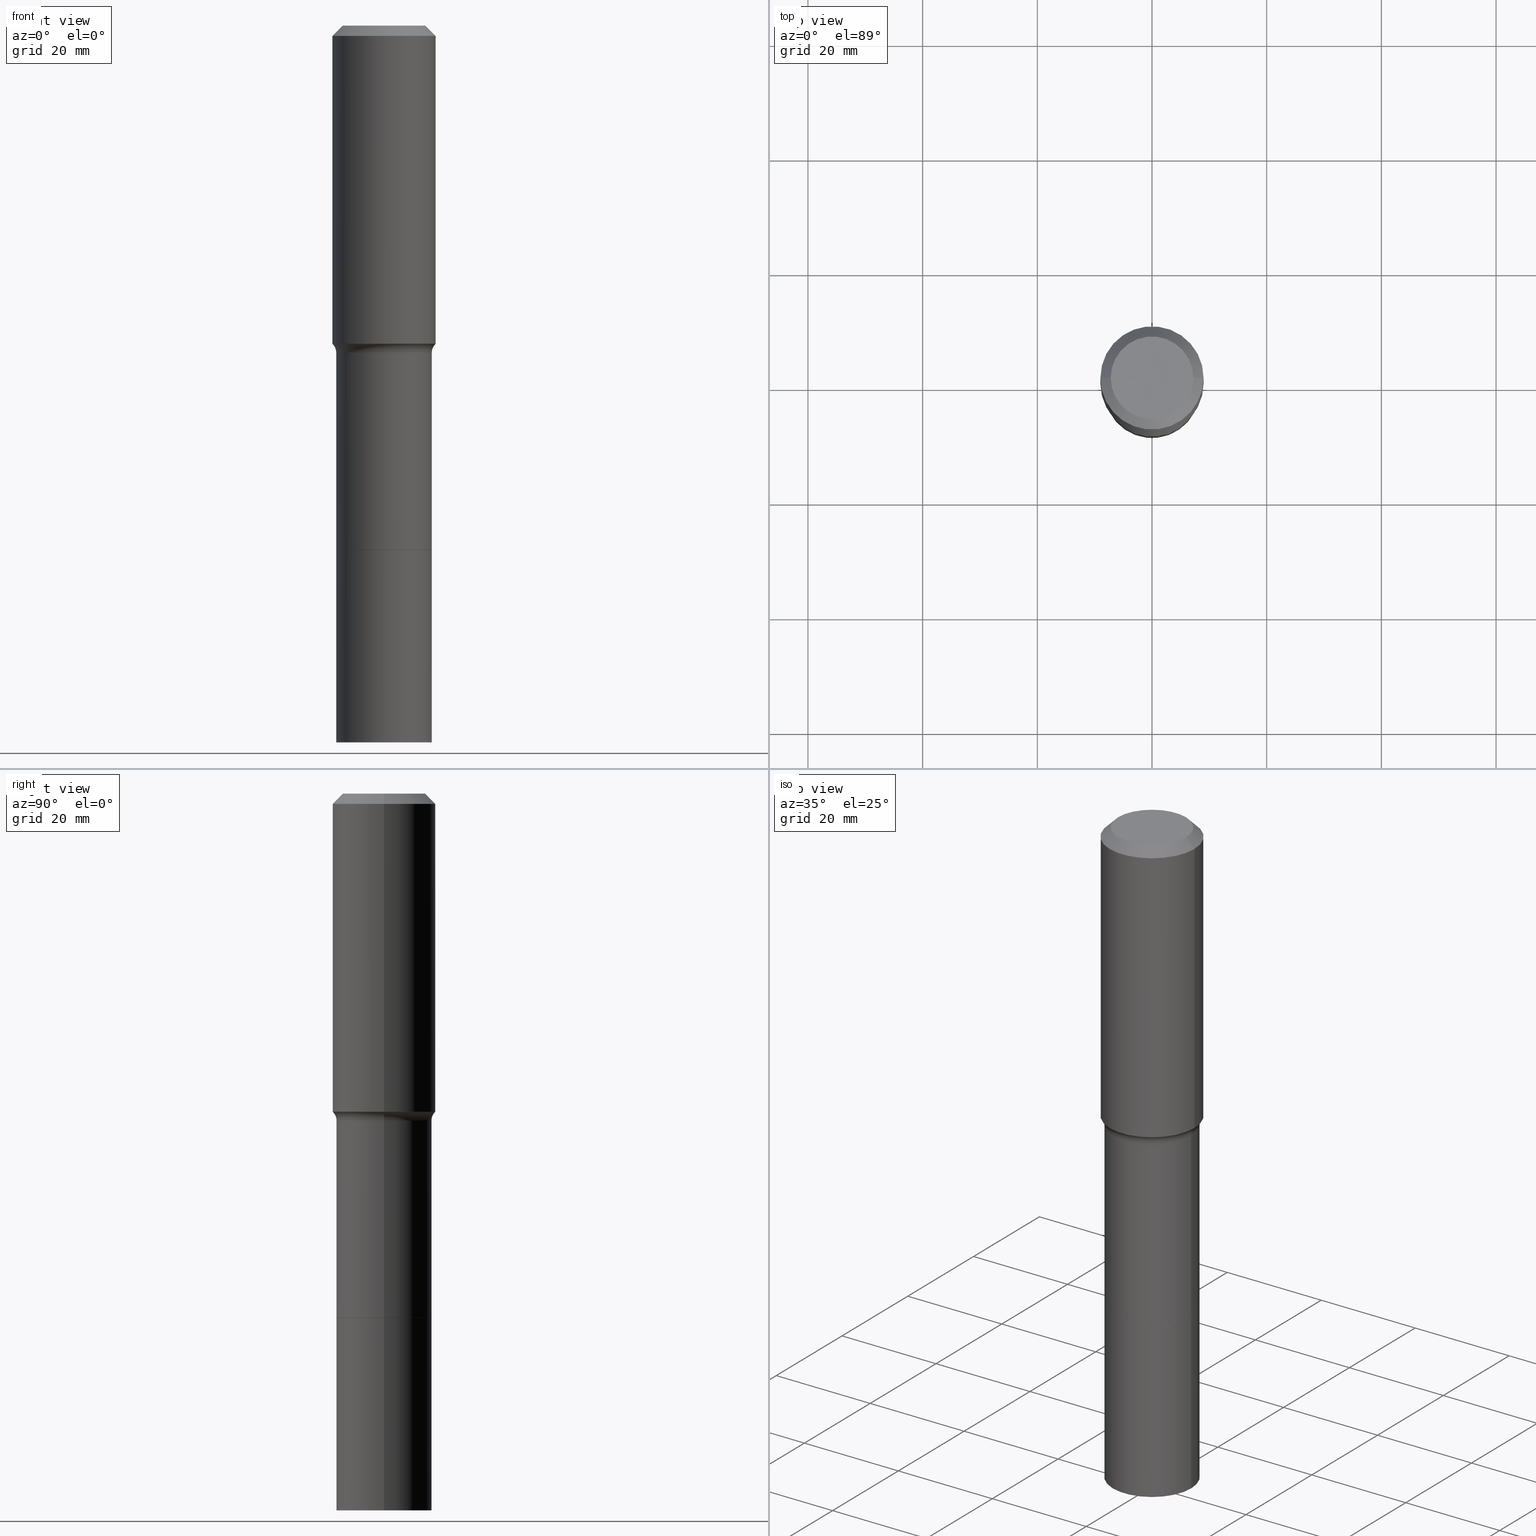
[diagram: canonical four-view strip — front | top / right | iso, engineering-drawing reading convention]
A machine part, canonical four-view strip (front | top / right | iso — engineering-drawing reading convention). The complete STEP part file that produces these views, byte-faithful:
ISO-10303-21;
HEADER;
FILE_DESCRIPTION (( 'STEP AP203' ),
    '1' );
FILE_NAME ('58543.STEP',
    '2025-04-01T15:24:35',
    ( '' ),
    ( '' ),
    'SwSTEP 2.0',
    'SolidWorks 2024',
    '' );
FILE_SCHEMA (( 'CONFIG_CONTROL_DESIGN' ));
ENDSEC;

DATA;
#1 = ADVANCED_FACE ( 'NONE', ( #60 ), #291, .T. ) ;
#2 = VERTEX_POINT ( 'NONE', #270 ) ;
#3 = DATE_AND_TIME ( #128, #19 ) ;
#4 = AXIS2_PLACEMENT_3D ( 'NONE', #454, #386, #271 ) ;
#5 = DIRECTION ( 'NONE',  ( -2.445468806185136597E-29, 3.491481338843145583E-15, 1.000000000000000000 ) ) ;
#6 = EDGE_CURVE ( 'NONE', #326, #81, #105, .T. ) ;
#7 = ORIENTED_EDGE ( 'NONE', *, *, #251, .T. ) ;
#8 = CARTESIAN_POINT ( 'NONE',  ( -0.3281000000000000028, -1.254521297251398418E-14, -3.600299999999999834 ) ) ;
#9 = LOCAL_TIME ( 11, 24, 34.00000000000000000, #288 ) ;
#10 = ORIENTED_EDGE ( 'NONE', *, *, #143, .F. ) ;
#11 = CALENDAR_DATE ( 2025, 1, 4 ) ;
#12 = EDGE_CURVE ( 'NONE', #422, #443, #468, .T. ) ;
#13 = ORIENTED_EDGE ( 'NONE', *, *, #47, .F. ) ;
#14 = CARTESIAN_POINT ( 'NONE',  ( 8.804421342908347653E-29, -1.257038026423697637E-14, -3.600299999999999834 ) ) ;
#15 = ADVANCED_FACE ( 'NONE', ( #94 ), #365, .T. ) ;
#16 = DIRECTION ( 'NONE',  ( -2.445468806185136597E-29, 3.491481338843145583E-15, 1.000000000000000000 ) ) ;
#17 = DIRECTION ( 'NONE',  ( 1.000000000000000000, -6.982962677686270655E-15, 0.000000000000000000 ) ) ;
#18 = CARTESIAN_POINT ( 'NONE',  ( 1.733103742943416361E-30, -2.474412824838151867E-16, -0.07087000000000041877 ) ) ;
#19 = LOCAL_TIME ( 11, 24, 34.00000000000000000, #368 ) ;
#20 = DIRECTION ( 'NONE',  ( 1.000000000000000000, -6.982962677686266711E-15, 0.000000000000000000 ) ) ;
#21 = CARTESIAN_POINT ( 'NONE',  ( 8.803198608505253731E-29, -1.256863452356755408E-14, -3.599799999999999667 ) ) ;
#22 = ORIENTED_EDGE ( 'NONE', *, *, #358, .T. ) ;
#23 = CARTESIAN_POINT ( 'NONE',  ( -0.3280999999999998917, 2.331290716028887941E-15, -1.613902603112634153E-29 ) ) ;
#24 = CARTESIAN_POINT ( 'NONE',  ( 5.488365641721302321E-29, -7.835931568765670941E-15, -2.244299999999999962 ) ) ;
#25 = ORIENTED_EDGE ( 'NONE', *, *, #301, .T. ) ;
#26 = CARTESIAN_POINT ( 'NONE',  ( 0.3276000000000000023, -1.485799883744699984E-14, -3.600300000000000278 ) ) ;
#27 = ORIENTED_EDGE ( 'NONE', *, *, #397, .F. ) ;
#28 = DIRECTION ( 'NONE',  ( 1.000000000000000000, -6.982962677686264344E-15, 0.000000000000000000 ) ) ;
#29 = ADVANCED_FACE ( 'NONE', ( #425 ), #231, .T. ) ;
#30 = FACE_OUTER_BOUND ( 'NONE', #337, .T. ) ;
#31 = APPROVAL ( #473, 'UNSPECIFIED' ) ;
#32 = AXIS2_PLACEMENT_3D ( 'NONE', #264, #5, #175 ) ;
#33 = AXIS2_PLACEMENT_3D ( 'NONE', #348, #137, #235 ) ;
#34 =( GEOMETRIC_REPRESENTATION_CONTEXT ( 3 ) GLOBAL_UNCERTAINTY_ASSIGNED_CONTEXT ( ( #183 ) ) GLOBAL_UNIT_ASSIGNED_CONTEXT ( ( #240, #282, #72 ) ) REPRESENTATION_CONTEXT ( 'NONE', 'WORKASPACE' ) );
#35 = ADVANCED_FACE ( 'NONE', ( #262 ), #499, .T. ) ;
#36 = APPROVAL_ROLE ( '' ) ;
#37 = DIRECTION ( 'NONE',  ( 1.000000000000000000, -6.982962677686268288E-15, 0.000000000000000000 ) ) ;
#38 = MANIFOLD_SOLID_BREP ( 'Body-Move/Copy2[1]', #393 ) ;
#39 = LINE ( 'NONE', #202, #241 ) ;
#40 = AXIS2_PLACEMENT_3D ( 'NONE', #273, #219, #102 ) ;
#41 = ORIENTED_EDGE ( 'NONE', *, *, #12, .F. ) ;
#42 = PERSON_AND_ORGANIZATION_ROLE ( 'creator' ) ;
#43 = EDGE_CURVE ( 'NONE', #2, #326, #80, .T. ) ;
#44 = VERTEX_POINT ( 'NONE', #501 ) ;
#45 = APPROVAL_STATUS ( 'not_yet_approved' ) ;
#46 = CARTESIAN_POINT ( 'NONE',  ( 1.733103742943416361E-30, -2.474412824838151867E-16, -0.07087000000000041877 ) ) ;
#47 = EDGE_CURVE ( 'NONE', #443, #466, #390, .T. ) ;
#48 = APPROVAL_ROLE ( '' ) ;
#49 = ORIENTED_EDGE ( 'NONE', *, *, #358, .F. ) ;
#50 = AXIS2_PLACEMENT_3D ( 'NONE', #129, #327, #478 ) ;
#51 = EDGE_LOOP ( 'NONE', ( #120, #492 ) ) ;
#52 = EDGE_CURVE ( 'NONE', #422, #452, #477, .T. ) ;
#53 = DIRECTION ( 'NONE',  ( -2.445468806185136597E-29, 3.491481338843145583E-15, 1.000000000000000000 ) ) ;
#54 = AXIS2_PLACEMENT_3D ( 'NONE', #353, #311, #423 ) ;
#55 = EDGE_LOOP ( 'NONE', ( #22, #376, #335, #518 ) ) ;
#56 = CC_DESIGN_PERSON_AND_ORGANIZATION_ASSIGNMENT ( #170, #42, ( #132 ) ) ;
#57 = DIRECTION ( 'NONE',  ( -1.000000000000000000, 6.982962677686265922E-15, -4.876176775795935793E-29 ) ) ;
#58 = FACE_OUTER_BOUND ( 'NONE', #330, .T. ) ;
#59 = CARTESIAN_POINT ( 'NONE',  ( -0.3543500000000001648, 2.517808184165916180E-15, -1.743024649231826627E-29 ) ) ;
#60 = FACE_OUTER_BOUND ( 'NONE', #172, .T. ) ;
#61 = CARTESIAN_POINT ( 'NONE',  ( 0.2834800000000000098, -2.311636360201216027E-15, 3.860086710927458874E-18 ) ) ;
#62 = CARTESIAN_POINT ( 'NONE',  ( 1.733103742943416361E-30, -2.474412824838151867E-16, -0.07087000000000041877 ) ) ;
#63 = DIRECTION ( 'NONE',  ( -0.7071067811860163310, 7.493145998868434073E-15, 0.7071067811870787034 ) ) ;
#64 = DIRECTION ( 'NONE',  ( 1.000000000000000000, -6.982962677686266711E-15, 0.000000000000000000 ) ) ;
#65 = ORIENTED_EDGE ( 'NONE', *, *, #193, .F. ) ;
#66 = DIRECTION ( 'NONE',  ( 1.000000000000000000, -6.982962677686264344E-15, 0.000000000000000000 ) ) ;
#67 = FACE_OUTER_BOUND ( 'NONE', #166, .T. ) ;
#68 = DIRECTION ( 'NONE',  ( 1.000000000000000000, -6.982962677686266711E-15, 4.876249319814053138E-29 ) ) ;
#69 = CARTESIAN_POINT ( 'NONE',  ( -0.3495917038704661750, -5.161438348311724867E-15, -2.189740131195000217 ) ) ;
#70 = ORIENTED_EDGE ( 'NONE', *, *, #167, .T. ) ;
#71 = EDGE_CURVE ( 'NONE', #2, #84, #281, .T. ) ;
#72 =( NAMED_UNIT ( * ) SI_UNIT ( $, .STERADIAN. ) SOLID_ANGLE_UNIT ( ) );
#73 = CIRCLE ( 'NONE', #451, 0.3543499999999999983 ) ;
#74 = CARTESIAN_POINT ( 'NONE',  ( -0.3543500000000002759, -5.109812820957476357E-15, -2.184637483312656059 ) ) ;
#75 = ADVANCED_FACE ( 'NONE', ( #110 ), #210, .T. ) ;
#76 = VECTOR ( 'NONE', #299, 39.37007874015748143 ) ;
#77 = DIRECTION ( 'NONE',  ( 1.000000000000000000, -6.982962677686266711E-15, 0.000000000000000000 ) ) ;
#78 = EDGE_CURVE ( 'NONE', #2, #412, #430, .T. ) ;
#79 = DIRECTION ( 'NONE',  ( -2.445468806185136877E-29, 3.491481338843145188E-15, 1.000000000000000000 ) ) ;
#80 = CIRCLE ( 'NONE', #379, 0.3495917038704661750 ) ;
#81 = VERTEX_POINT ( 'NONE', #74 ) ;
#82 = CC_DESIGN_PERSON_AND_ORGANIZATION_ASSIGNMENT ( #205, #334, ( #132 ) ) ;
#83 = AXIS2_PLACEMENT_3D ( 'NONE', #450, #460, #136 ) ;
#84 = VERTEX_POINT ( 'NONE', #113 ) ;
#85 = DIRECTION ( 'NONE',  ( 1.000000000000000000, -6.982962677686264344E-15, 0.000000000000000000 ) ) ;
#86 = ORIENTED_EDGE ( 'NONE', *, *, #321, .F. ) ;
#87 = CARTESIAN_POINT ( 'NONE',  ( 8.804421342908348775E-29, -1.257038026423697795E-14, -3.600300000000000278 ) ) ;
#88 = ADVANCED_FACE ( 'NONE', ( #30 ), #516, .T. ) ;
#89 = ORIENTED_EDGE ( 'NONE', *, *, #237, .F. ) ;
#90 = CARTESIAN_POINT ( 'NONE',  ( 4.611458204391559748E-29, -1.857494212723419535E-14, -3.600300000000000278 ) ) ;
#91 = AXIS2_PLACEMENT_3D ( 'NONE', #374, #464, #309 ) ;
#92 = ORIENTED_EDGE ( 'NONE', *, *, #397, .T. ) ;
#93 = DIRECTION ( 'NONE',  ( 7.105427357601001859E-15, 1.000000000000000000, -3.491481338843145583E-15 ) ) ;
#94 = FACE_OUTER_BOUND ( 'NONE', #509, .T. ) ;
#95 = DIRECTION ( 'NONE',  ( -2.445468806185136597E-29, 3.491481338843145583E-15, 1.000000000000000000 ) ) ;
#96 = DIRECTION ( 'NONE',  ( -2.445468806185136597E-29, 3.491481338843145583E-15, 1.000000000000000000 ) ) ;
#97 = DIRECTION ( 'NONE',  ( -2.445468806185136597E-29, 3.491481338843145583E-15, 1.000000000000000000 ) ) ;
#98 = AXIS2_PLACEMENT_3D ( 'NONE', #149, #360, #28 ) ;
#99 = CARTESIAN_POINT ( 'NONE',  ( -0.3280999999999998362, -7.870992330137724174E-15, -2.244299999999999962 ) ) ;
#100 = APPROVAL ( #45, 'UNSPECIFIED' ) ;
#101 = APPROVAL_PERSON_ORGANIZATION ( #433, #31, #36 ) ;
#102 = DIRECTION ( 'NONE',  ( 1.000000000000000000, -6.982962677686264344E-15, 0.000000000000000000 ) ) ;
#103 = CARTESIAN_POINT ( 'NONE',  ( -0.3276000000000000023, -1.023999303471277694E-14, -3.600300000000000278 ) ) ;
#104 = ADVANCED_FACE ( 'NONE', ( #362 ), #238, .F. ) ;
#105 = LINE ( 'NONE', #459, #389 ) ;
#106 = LINE ( 'NONE', #274, #394 ) ;
#107 = DIRECTION ( 'NONE',  ( -2.445468806185136597E-29, 3.491481338843145583E-15, 1.000000000000000000 ) ) ;
#108 = DIRECTION ( 'NONE',  ( -1.000000000000000000, 6.982962677686265922E-15, -4.876176775795935793E-29 ) ) ;
#109 = APPLICATION_PROTOCOL_DEFINITION ( 'international standard', 'config_control_design', 1994, #435 ) ;
#110 = FACE_OUTER_BOUND ( 'NONE', #293, .T. ) ;
#111 = AXIS2_PLACEMENT_3D ( 'NONE', #90, #226, #411 ) ;
#112 = LINE ( 'NONE', #279, #399 ) ;
#113 = CARTESIAN_POINT ( 'NONE',  ( 0.3543500000000002759, -1.010203382996152320E-14, -2.184637483312656059 ) ) ;
#114 = DIRECTION ( 'NONE',  ( 2.438088387897960049E-29, -3.491481338843145188E-15, -1.000000000000000000 ) ) ;
#115 = EDGE_CURVE ( 'NONE', #81, #84, #122, .T. ) ;
#116 = VECTOR ( 'NONE', #487, 39.37007874015748143 ) ;
#117 = CARTESIAN_POINT ( 'NONE',  ( -0.3543499999999999983, 2.226971542354313655E-15, -0.07087000000000041877 ) ) ;
#118 = AXIS2_PLACEMENT_3D ( 'NONE', #127, #267, #57 ) ;
#119 = EDGE_CURVE ( 'NONE', #372, #177, #112, .T. ) ;
#120 = ORIENTED_EDGE ( 'NONE', *, *, #514, .F. ) ;
#121 = PERSON_AND_ORGANIZATION_ROLE ( 'classification_officer' ) ;
#122 = CIRCLE ( 'NONE', #50, 0.3543500000000002759 ) ;
#123 = ORIENTED_EDGE ( 'NONE', *, *, #243, .F. ) ;
#124 = PERSON_AND_ORGANIZATION ( #296, #336 ) ;
#125 = EDGE_LOOP ( 'NONE', ( #13, #41, #169, #204 ) ) ;
#126 = ORIENTED_EDGE ( 'NONE', *, *, #180, .F. ) ;
#127 = CARTESIAN_POINT ( 'NONE',  ( -4.719860820353095981E-47, 6.738710358733626979E-33, 1.930043355456227555E-18 ) ) ;
#128 = CALENDAR_DATE ( 2025, 1, 4 ) ;
#129 = CARTESIAN_POINT ( 'NONE',  ( 5.342462818263902286E-29, -7.627621005123393326E-15, -2.184637483312656059 ) ) ;
#130 = ORIENTED_EDGE ( 'NONE', *, *, #143, .T. ) ;
#131 = CARTESIAN_POINT ( 'NONE',  ( 0.000000000000000000, 0.000000000000000000, 0.000000000000000000 ) ) ;
#132 = PRODUCT_DEFINITION_FORMATION_WITH_SPECIFIED_SOURCE ( 'ANY', '', #490, .NOT_KNOWN. ) ;
#133 = FACE_OUTER_BOUND ( 'NONE', #332, .T. ) ;
#134 = VERTEX_POINT ( 'NONE', #406 ) ;
#135 = ADVANCED_FACE ( 'NONE', ( #375 ), #176, .T. ) ;
#136 = DIRECTION ( 'NONE',  ( -1.000000000000000000, 6.982962677686266711E-15, 0.000000000000000000 ) ) ;
#137 = DIRECTION ( 'NONE',  ( -2.445468806185136597E-29, 3.491481338843145583E-15, 1.000000000000000000 ) ) ;
#138 = ORIENTED_EDGE ( 'NONE', *, *, #486, .T. ) ;
#139 = CARTESIAN_POINT ( 'NONE',  ( 0.3543500000000001648, -2.474412824838129483E-15, 1.727873240503290590E-29 ) ) ;
#140 = ORIENTED_EDGE ( 'NONE', *, *, #380, .T. ) ;
#141 = VECTOR ( 'NONE', #431, 39.37007874015748143 ) ;
#142 = PLANE ( 'NONE',  #111 ) ;
#143 = EDGE_CURVE ( 'NONE', #81, #452, #171, .T. ) ;
#144 = AXIS2_PLACEMENT_3D ( 'NONE', #21, #182, #357 ) ;
#145 = DIRECTION ( 'NONE',  ( -2.445468806185136597E-29, 3.491481338843145583E-15, 1.000000000000000000 ) ) ;
#146 = CC_DESIGN_DATE_AND_TIME_ASSIGNMENT ( #403, #494, ( #432 ) ) ;
#147 = DIRECTION ( 'NONE',  ( -0.6819983600625011411, 7.399397606724297620E-15, 0.7313537016191680173 ) ) ;
#148 = CARTESIAN_POINT ( 'NONE',  ( 0.000000000000000000, 0.000000000000000000, 0.000000000000000000 ) ) ;
#149 = CARTESIAN_POINT ( 'NONE',  ( 8.804421342908348775E-29, -1.257038026423697795E-14, -3.600300000000000278 ) ) ;
#150 = SHAPE_DEFINITION_REPRESENTATION ( #328, #504 ) ;
#151 = AXIS2_PLACEMENT_3D ( 'NONE', #417, #253, #414 ) ;
#152 = AXIS2_PLACEMENT_3D ( 'NONE', #383, #93, #347 ) ;
#153 = ADVANCED_FACE ( 'NONE', ( #218 ), #483, .T. ) ;
#154 = CALENDAR_DATE ( 2025, 1, 4 ) ;
#155 = CARTESIAN_POINT ( 'NONE',  ( 5.354941184489120868E-29, -7.645436804983283670E-15, -2.189740131195000217 ) ) ;
#156 = AXIS2_PLACEMENT_3D ( 'NONE', #415, #97, #20 ) ;
#157 = ADVANCED_FACE ( 'NONE', ( #133 ), #355, .F. ) ;
#158 = PERSON_AND_ORGANIZATION ( #296, #336 ) ;
#159 = CARTESIAN_POINT ( 'NONE',  ( 0.000000000000000000, 0.000000000000000000, 0.000000000000000000 ) ) ;
#160 = ORIENTED_EDGE ( 'NONE', *, *, #514, .T. ) ;
#161 = CIRCLE ( 'NONE', #346, 0.3276000000000000023 ) ;
#162 = EDGE_LOOP ( 'NONE', ( #266, #190 ) ) ;
#163 = ORIENTED_EDGE ( 'NONE', *, *, #208, .F. ) ;
#164 = CLOSED_SHELL ( 'NONE', ( #1, #135, #35, #75, #329, #315, #260, #157, #15, #88, #269, #474, #290, #153 ) ) ;
#165 = CIRCLE ( 'NONE', #461, 0.3543499999999999983 ) ;
#166 = EDGE_LOOP ( 'NONE', ( #480, #25, #7, #305 ) ) ;
#167 = EDGE_CURVE ( 'NONE', #254, #384, #343, .T. ) ;
#168 = AXIS2_PLACEMENT_3D ( 'NONE', #502, #96, #17 ) ;
#169 = ORIENTED_EDGE ( 'NONE', *, *, #52, .T. ) ;
#170 = PERSON_AND_ORGANIZATION ( #296, #336 ) ;
#171 = LINE ( 'NONE', #59, #116 ) ;
#172 = EDGE_LOOP ( 'NONE', ( #352, #70, #49, #89 ) ) ;
#173 = CARTESIAN_POINT ( 'NONE',  ( -0.3543499999999999983, -1.419722959637687608E-15, -0.07087000000000041877 ) ) ;
#174 = CYLINDRICAL_SURFACE ( 'NONE', #197, 0.3281000000000001138 ) ;
#175 = DIRECTION ( 'NONE',  ( 1.000000000000000000, -6.982962677686265922E-15, 4.883557194083112901E-29 ) ) ;
#176 = CONICAL_SURFACE ( 'NONE', #515, 0.3543499999999999983, 0.7853981633974453924 ) ;
#177 = VERTEX_POINT ( 'NONE', #8 ) ;
#178 = DIRECTION ( 'NONE',  ( 1.000000000000000000, -6.982962677686265922E-15, 4.883557194083112901E-29 ) ) ;
#179 = DIRECTION ( 'NONE',  ( -2.445468806185136597E-29, 3.491481338843145583E-15, 1.000000000000000000 ) ) ;
#180 = EDGE_CURVE ( 'NONE', #443, #422, #188, .T. ) ;
#181 = ORIENTED_EDGE ( 'NONE', *, *, #71, .T. ) ;
#182 = DIRECTION ( 'NONE',  ( -2.445468806185136597E-29, 3.491481338843145583E-15, 1.000000000000000000 ) ) ;
#183 = UNCERTAINTY_MEASURE_WITH_UNIT (LENGTH_MEASURE( 1.000000000000000082E-05 ), #240, 'distance_accuracy_value', 'NONE');
#184 = EDGE_LOOP ( 'NONE', ( #92, #130, #310, #187 ) ) ;
#185 = DIRECTION ( 'NONE',  ( 1.000000000000000000, -6.982962677686266711E-15, 0.000000000000000000 ) ) ;
#186 = DIRECTION ( 'NONE',  ( 1.000000000000000000, -6.982962677686268288E-15, 0.000000000000000000 ) ) ;
#187 = ORIENTED_EDGE ( 'NONE', *, *, #380, .F. ) ;
#188 = CIRCLE ( 'NONE', #151, 0.2834800000000000098 ) ;
#189 = CYLINDRICAL_SURFACE ( 'NONE', #401, 0.3280999999999998917 ) ;
#190 = ORIENTED_EDGE ( 'NONE', *, *, #180, .T. ) ;
#191 = DIRECTION ( 'NONE',  ( -2.445468806185136597E-29, 3.491481338843145583E-15, 1.000000000000000000 ) ) ;
#192 = DIRECTION ( 'NONE',  ( 1.000000000000000000, 0.000000000000000000, 0.000000000000000000 ) ) ;
#193 = EDGE_CURVE ( 'NONE', #297, #412, #475, .T. ) ;
#194 = DIRECTION ( 'NONE',  ( 1.000000000000000000, -6.982962677686265922E-15, 4.876176775795935793E-29 ) ) ;
#195 = CIRCLE ( 'NONE', #484, 0.3280999999999998362 ) ;
#196 = CARTESIAN_POINT ( 'NONE',  ( 0.3495917038704661750, -1.008662262553949973E-14, -2.189740131195000217 ) ) ;
#197 = AXIS2_PLACEMENT_3D ( 'NONE', #230, #304, #424 ) ;
#198 = EDGE_CURVE ( 'NONE', #177, #248, #512, .T. ) ;
#199 = COORDINATED_UNIVERSAL_TIME_OFFSET ( 5, 0, .BEHIND. ) ;
#200 = AXIS2_PLACEMENT_3D ( 'NONE', #434, #320, #37 ) ;
#201 = CC_DESIGN_DATE_AND_TIME_ASSIGNMENT ( #482, #439, ( #212 ) ) ;
#202 = CARTESIAN_POINT ( 'NONE',  ( 0.3281000000000001138, -1.486149031878584127E-14, -3.600299999999999834 ) ) ;
#203 = MANIFOLD_SOLID_BREP ( 'Body-Move/Copy2[2]', #164 ) ;
#204 = ORIENTED_EDGE ( 'NONE', *, *, #243, .T. ) ;
#205 = PERSON_AND_ORGANIZATION ( #296, #336 ) ;
#206 = ORIENTED_EDGE ( 'NONE', *, *, #257, .T. ) ;
#207 = APPROVAL_ROLE ( '' ) ;
#208 = EDGE_CURVE ( 'NONE', #410, #254, #333, .T. ) ;
#209 = ORIENTED_EDGE ( 'NONE', *, *, #193, .T. ) ;
#210 = CONICAL_SURFACE ( 'NONE', #426, 0.3495917038704661750, 0.7504915783575653032 ) ;
#211 = DIRECTION ( 'NONE',  ( 1.000000000000000000, -6.982962677686264344E-15, 0.000000000000000000 ) ) ;
#212 = PRODUCT_DEFINITION ( 'UNKNOWN', '', #132, #272 ) ;
#213 = ORIENTED_EDGE ( 'NONE', *, *, #216, .T. ) ;
#214 = AXIS2_PLACEMENT_3D ( 'NONE', #14, #306, #186 ) ;
#215 = ORIENTED_EDGE ( 'NONE', *, *, #505, .T. ) ;
#216 = EDGE_CURVE ( 'NONE', #412, #297, #195, .T. ) ;
#217 = DIRECTION ( 'NONE',  ( -2.445468806185136597E-29, 3.491481338843145583E-15, 1.000000000000000000 ) ) ;
#218 = FACE_OUTER_BOUND ( 'NONE', #485, .T. ) ;
#219 = DIRECTION ( 'NONE',  ( -2.445468806185136597E-29, 3.491481338843145583E-15, 1.000000000000000000 ) ) ;
#220 = DIRECTION ( 'NONE',  ( -2.445468806185136597E-29, 3.491481338843145583E-15, 1.000000000000000000 ) ) ;
#221 = PRODUCT_RELATED_PRODUCT_CATEGORY ( 'detail', '', ( #490 ) ) ;
#222 = CARTESIAN_POINT ( 'NONE',  ( 5.488365641721302321E-29, -7.835931568765670941E-15, -2.244299999999999962 ) ) ;
#223 = VECTOR ( 'NONE', #318, 39.37007874015748143 ) ;
#224 = ORIENTED_EDGE ( 'NONE', *, *, #167, .F. ) ;
#225 = PLANE ( 'NONE',  #118 ) ;
#226 = DIRECTION ( 'NONE',  ( -2.438088387897960049E-29, 3.491481338843145188E-15, 1.000000000000000000 ) ) ;
#227 = AXIS2_PLACEMENT_3D ( 'NONE', #377, #95, #185 ) ;
#228 = CARTESIAN_POINT ( 'NONE',  ( 1.203488563587891146E-28, -1.718262711284877024E-14, -4.921299999999999564 ) ) ;
#229 = CARTESIAN_POINT ( 'NONE',  ( 8.804421342908347653E-29, -1.257038026423697637E-14, -3.600299999999999834 ) ) ;
#230 = CARTESIAN_POINT ( 'NONE',  ( 8.804421342908347653E-29, -1.257038026423697637E-14, -3.600299999999999834 ) ) ;
#231 = PLANE ( 'NONE',  #246 ) ;
#232 = FACE_OUTER_BOUND ( 'NONE', #55, .T. ) ;
#233 = DIRECTION ( 'NONE',  ( -2.445468806185136597E-29, 3.491481338843145583E-15, 1.000000000000000000 ) ) ;
#234 = AXIS2_PLACEMENT_3D ( 'NONE', #159, #275, #194 ) ;
#235 = DIRECTION ( 'NONE',  ( 1.000000000000000000, -6.982962677686270655E-15, 0.000000000000000000 ) ) ;
#236 = CIRCLE ( 'NONE', #54, 0.3281000000000002248 ) ;
#237 = EDGE_CURVE ( 'NONE', #410, #44, #106, .T. ) ;
#238 = PLANE ( 'NONE',  #276 ) ;
#239 = AXIS2_PLACEMENT_3D ( 'NONE', #349, #145, #314 ) ;
#240 =( CONVERSION_BASED_UNIT ( 'INCH', #280 ) LENGTH_UNIT ( ) NAMED_UNIT ( #287 ) );
#241 = VECTOR ( 'NONE', #79, 39.37007874015748143 ) ;
#242 = MECHANICAL_CONTEXT ( 'NONE', #435, 'mechanical' ) ;
#243 = EDGE_CURVE ( 'NONE', #452, #466, #165, .T. ) ;
#244 = APPROVAL_PERSON_ORGANIZATION ( #292, #245, #48 ) ;
#245 = APPROVAL ( #404, 'UNSPECIFIED' ) ;
#246 = AXIS2_PLACEMENT_3D ( 'NONE', #228, #356, #108 ) ;
#247 = DATE_AND_TIME ( #479, #470 ) ;
#248 = VERTEX_POINT ( 'NONE', #398 ) ;
#249 = APPROVAL_PERSON_ORGANIZATION ( #294, #100, #207 ) ;
#250 = DATE_AND_TIME ( #11, #9 ) ;
#251 = EDGE_CURVE ( 'NONE', #134, #248, #39, .T. ) ;
#252 = ORIENTED_EDGE ( 'NONE', *, *, #505, .F. ) ;
#253 = DIRECTION ( 'NONE',  ( -2.445468806185136597E-29, 3.491481338843145583E-15, 1.000000000000000000 ) ) ;
#254 = VERTEX_POINT ( 'NONE', #103 ) ;
#255 = AXIS2_PLACEMENT_3D ( 'NONE', #87, #295, #85 ) ;
#256 = ORIENTED_EDGE ( 'NONE', *, *, #115, .F. ) ;
#257 = EDGE_CURVE ( 'NONE', #44, #412, #388, .T. ) ;
#258 = DIRECTION ( 'NONE',  ( -2.445468806185136877E-29, 3.491481338843145188E-15, 1.000000000000000000 ) ) ;
#259 = ORIENTED_EDGE ( 'NONE', *, *, #47, .T. ) ;
#260 = ADVANCED_FACE ( 'NONE', ( #378 ), #508, .T. ) ;
#261 = DIRECTION ( 'NONE',  ( -2.445468806185136597E-29, 3.491481338843145583E-15, 1.000000000000000000 ) ) ;
#262 = FACE_OUTER_BOUND ( 'NONE', #184, .T. ) ;
#263 = CARTESIAN_POINT ( 'NONE',  ( 0.3280999999999998917, -2.291110054548863720E-15, 1.599873600138646028E-29 ) ) ;
#264 = CARTESIAN_POINT ( 'NONE',  ( 5.488365641721302321E-29, -7.835931568765670941E-15, -2.244299999999999962 ) ) ;
#265 = VECTOR ( 'NONE', #258, 39.37007874015748143 ) ;
#266 = ORIENTED_EDGE ( 'NONE', *, *, #12, .T. ) ;
#267 = DIRECTION ( 'NONE',  ( 2.438088387897960049E-29, -3.491481338843145188E-15, -1.000000000000000000 ) ) ;
#268 = DIRECTION ( 'NONE',  ( 1.000000000000000000, -6.982962677686267499E-15, 4.876176775795935793E-29 ) ) ;
#269 = ADVANCED_FACE ( 'NONE', ( #416 ), #428, .T. ) ;
#270 = CARTESIAN_POINT ( 'NONE',  ( 0.3495917038704661750, -1.008662262553949657E-14, -2.189740131195000217 ) ) ;
#271 = DIRECTION ( 'NONE',  ( 1.000000000000000000, -6.982962677686267499E-15, 4.876176775795935793E-29 ) ) ;
#272 = DESIGN_CONTEXT ( 'detailed design', #323, 'design' ) ;
#273 = CARTESIAN_POINT ( 'NONE',  ( 8.804421342908348775E-29, -1.257038026423697795E-14, -3.600300000000000278 ) ) ;
#274 = CARTESIAN_POINT ( 'NONE',  ( 0.3276000000000000023, -1.485799883744699984E-14, -3.600300000000000278 ) ) ;
#275 = DIRECTION ( 'NONE',  ( -2.445468806185136597E-29, 3.491481338843145583E-15, 1.000000000000000000 ) ) ;
#276 = AXIS2_PLACEMENT_3D ( 'NONE', #471, #114, #340 ) ;
#277 = EDGE_CURVE ( 'NONE', #326, #297, #420, .T. ) ;
#278 = VECTOR ( 'NONE', #312, 39.37007874015748143 ) ;
#279 = CARTESIAN_POINT ( 'NONE',  ( -0.3281000000000001138, -1.023908954820808567E-14, -3.600299999999999834 ) ) ;
#280 = LENGTH_MEASURE_WITH_UNIT ( LENGTH_MEASURE( 0.02539999999999999897 ), #467 );
#281 = LINE ( 'NONE', #196, #141 ) ;
#282 =( NAMED_UNIT ( * ) PLANE_ANGLE_UNIT ( ) SI_UNIT ( $, .RADIAN. ) );
#283 = APPLICATION_PROTOCOL_DEFINITION ( 'international standard', 'config_control_design', 1994, #323 ) ;
#284 = DIRECTION ( 'NONE',  ( 1.000000000000000000, -6.982962677686266711E-15, 0.000000000000000000 ) ) ;
#285 = CIRCLE ( 'NONE', #392, 0.3281000000000002248 ) ;
#286 = PERSON_AND_ORGANIZATION_ROLE ( 'creator' ) ;
#287 = DIMENSIONAL_EXPONENTS ( 1.000000000000000000, 0.000000000000000000, 0.000000000000000000, 0.000000000000000000, 0.000000000000000000, 0.000000000000000000, 0.000000000000000000 ) ;
#288 = COORDINATED_UNIVERSAL_TIME_OFFSET ( 5, 0, .BEHIND. ) ;
#289 = ORIENTED_EDGE ( 'NONE', *, *, #6, .T. ) ;
#290 = ADVANCED_FACE ( 'NONE', ( #300 ), #142, .F. ) ;
#291 = CONICAL_SURFACE ( 'NONE', #40, 0.3276000000000000023, 0.7853981633966971021 ) ;
#292 = PERSON_AND_ORGANIZATION ( #296, #336 ) ;
#293 = EDGE_LOOP ( 'NONE', ( #495, #289, #27, #402 ) ) ;
#294 = PERSON_AND_ORGANIZATION ( #296, #336 ) ;
#295 = DIRECTION ( 'NONE',  ( -2.445468806185136597E-29, 3.491481338843145583E-15, 1.000000000000000000 ) ) ;
#296 = PERSON ( 'UNSPECIFIED', 'UNSPECIFIED', 'UNSPECIFIED', ('UNSPECIFIED'), ('UNSPECIFIED'), ('UNSPECIFIED') ) ;
#297 = VERTEX_POINT ( 'NONE', #99 ) ;
#298 = ORIENTED_EDGE ( 'NONE', *, *, #6, .F. ) ;
#299 = DIRECTION ( 'NONE',  ( -2.445468806185136877E-29, 3.491481338843145188E-15, 1.000000000000000000 ) ) ;
#300 = FACE_OUTER_BOUND ( 'NONE', #370, .T. ) ;
#301 = EDGE_CURVE ( 'NONE', #372, #134, #285, .T. ) ;
#302 = ORIENTED_EDGE ( 'NONE', *, *, #43, .F. ) ;
#303 = CC_DESIGN_APPROVAL ( #100, ( #432 ) ) ;
#304 = DIRECTION ( 'NONE',  ( -2.445468806185136597E-29, 3.491481338843145583E-15, 1.000000000000000000 ) ) ;
#305 = ORIENTED_EDGE ( 'NONE', *, *, #198, .F. ) ;
#306 = DIRECTION ( 'NONE',  ( -2.445468806185136597E-29, 3.491481338843145583E-15, 1.000000000000000000 ) ) ;
#307 = ORIENTED_EDGE ( 'NONE', *, *, #277, .F. ) ;
#308 = ADVANCED_FACE ( 'NONE', ( #58 ), #421, .T. ) ;
#309 = DIRECTION ( 'NONE',  ( 1.000000000000000000, -6.982962677686268288E-15, 0.000000000000000000 ) ) ;
#310 = ORIENTED_EDGE ( 'NONE', *, *, #442, .F. ) ;
#311 = DIRECTION ( 'NONE',  ( -2.445468806185136597E-29, 3.491481338843145583E-15, 1.000000000000000000 ) ) ;
#312 = DIRECTION ( 'NONE',  ( -2.445468806185136877E-29, 3.491481338843145188E-15, 1.000000000000000000 ) ) ;
#313 = CIRCLE ( 'NONE', #227, 0.3495917038704661750 ) ;
#314 = DIRECTION ( 'NONE',  ( 1.000000000000000000, -6.982962677686265922E-15, 4.876176775795935793E-29 ) ) ;
#315 = ADVANCED_FACE ( 'NONE', ( #232 ), #189, .T. ) ;
#316 = EDGE_LOOP ( 'NONE', ( #441, #418, #206, #65 ) ) ;
#317 = DIRECTION ( 'NONE',  ( 0.000000000000000000, 0.000000000000000000, 1.000000000000000000 ) ) ;
#318 = DIRECTION ( 'NONE',  ( 0.7071067811865454633, -7.319954787623248157E-15, -0.7071067811865495711 ) ) ;
#319 = CC_DESIGN_SECURITY_CLASSIFICATION ( #432, ( #132 ) ) ;
#320 = DIRECTION ( 'NONE',  ( -6.982962677686266711E-15, -1.000000000000000000, 3.491481338843145583E-15 ) ) ;
#321 = EDGE_CURVE ( 'NONE', #384, #44, #324, .T. ) ;
#322 = CARTESIAN_POINT ( 'NONE',  ( 0.3543499999999999983, -2.678458747994157430E-15, -0.07087000000000041877 ) ) ;
#323 = APPLICATION_CONTEXT ( 'configuration controlled 3d designs of mechanical parts and assemblies' ) ;
#324 = CIRCLE ( 'NONE', #168, 0.3281000000000000028 ) ;
#325 = CIRCLE ( 'NONE', #513, 0.3281000000000000028 ) ;
#326 = VERTEX_POINT ( 'NONE', #69 ) ;
#327 = DIRECTION ( 'NONE',  ( -2.445468806185136597E-29, 3.491481338843145583E-15, 1.000000000000000000 ) ) ;
#328 = PRODUCT_DEFINITION_SHAPE ( 'NONE', 'NONE',  #212 ) ;
#329 = ADVANCED_FACE ( 'NONE', ( #500 ), #440, .F. ) ;
#330 = EDGE_LOOP ( 'NONE', ( #160, #507, #252, #446 ) ) ;
#331 = COORDINATED_UNIVERSAL_TIME_OFFSET ( 5, 0, .BEHIND. ) ;
#332 = EDGE_LOOP ( 'NONE', ( #307, #302, #489, #213 ) ) ;
#333 = CIRCLE ( 'NONE', #98, 0.3276000000000000023 ) ;
#334 = PERSON_AND_ORGANIZATION_ROLE ( 'design_supplier' ) ;
#335 = ORIENTED_EDGE ( 'NONE', *, *, #216, .F. ) ;
#336 = ORGANIZATION ( 'UNSPECIFIED', 'UNSPECIFIED', '' ) ;
#337 = EDGE_LOOP ( 'NONE', ( #10, #367, #140, #123 ) ) ;
#338 = CARTESIAN_POINT ( 'NONE',  ( 8.804421342908348775E-29, -1.257038026423697795E-14, -3.600300000000000278 ) ) ;
#339 = COORDINATED_UNIVERSAL_TIME_OFFSET ( 5, 0, .BEHIND. ) ;
#340 = DIRECTION ( 'NONE',  ( -1.000000000000000000, 6.982962677686265922E-15, -4.876176775795935793E-29 ) ) ;
#341 = ORIENTED_EDGE ( 'NONE', *, *, #198, .T. ) ;
#342 = CARTESIAN_POINT ( 'NONE',  ( -0.3281000000000000028, -7.870992330137724174E-15, -3.599799999999999667 ) ) ;
#343 = LINE ( 'NONE', #455, #409 ) ;
#344 = ORIENTED_EDGE ( 'NONE', *, *, #78, .F. ) ;
#345 = DIRECTION ( 'NONE',  ( 1.000000000000000000, -6.982962677686266711E-15, 0.000000000000000000 ) ) ;
#346 = AXIS2_PLACEMENT_3D ( 'NONE', #338, #419, #66 ) ;
#347 = DIRECTION ( 'NONE',  ( -1.000000000000000000, 7.105427357601001859E-15, 0.000000000000000000 ) ) ;
#348 = CARTESIAN_POINT ( 'NONE',  ( 8.804421342908347653E-29, -1.257038026423697637E-14, -3.600299999999999834 ) ) ;
#349 = CARTESIAN_POINT ( 'NONE',  ( 0.000000000000000000, 0.000000000000000000, 0.000000000000000000 ) ) ;
#350 = CARTESIAN_POINT ( 'NONE',  ( 0.3543499999999999983, -2.721854107321943733E-15, -0.07087000000000041877 ) ) ;
#351 = LINE ( 'NONE', #139, #278 ) ;
#352 = ORIENTED_EDGE ( 'NONE', *, *, #208, .T. ) ;
#353 = CARTESIAN_POINT ( 'NONE',  ( 1.203488563587891146E-28, -1.718262711284877024E-14, -4.921299999999999564 ) ) ;
#354 = CARTESIAN_POINT ( 'NONE',  ( -0.3281000000000002248, -1.254521297251398260E-14, -4.921299999999999564 ) ) ;
#355 = TOROIDAL_SURFACE ( 'NONE', #32, 0.4080999999999997407, 0.07999999999999990452 ) ;
#356 = DIRECTION ( 'NONE',  ( 2.438088387897960049E-29, -3.491481338843145188E-15, -1.000000000000000000 ) ) ;
#357 = DIRECTION ( 'NONE',  ( 1.000000000000000000, -6.982962677686270655E-15, 0.000000000000000000 ) ) ;
#358 = EDGE_CURVE ( 'NONE', #44, #384, #488, .T. ) ;
#359 = EDGE_LOOP ( 'NONE', ( #215, #341 ) ) ;
#360 = DIRECTION ( 'NONE',  ( -2.445468806185136597E-29, 3.491481338843145583E-15, 1.000000000000000000 ) ) ;
#361 = CC_DESIGN_PERSON_AND_ORGANIZATION_ASSIGNMENT ( #396, #476, ( #490 ) ) ;
#362 = FACE_OUTER_BOUND ( 'NONE', #359, .T. ) ;
#363 = LOCAL_TIME ( 11, 24, 34.00000000000000000, #339 ) ;
#364 = APPROVAL_DATE_TIME ( #247, #31 ) ;
#365 = CONICAL_SURFACE ( 'NONE', #156, 0.3495917038704661750, 0.7504915783575653032 ) ;
#366 = ORIENTED_EDGE ( 'NONE', *, *, #486, .F. ) ;
#367 = ORIENTED_EDGE ( 'NONE', *, *, #115, .T. ) ;
#368 = COORDINATED_UNIVERSAL_TIME_OFFSET ( 5, 0, .BEHIND. ) ;
#369 = ORIENTED_EDGE ( 'NONE', *, *, #277, .T. ) ;
#370 = EDGE_LOOP ( 'NONE', ( #163, #366 ) ) ;
#371 = CC_DESIGN_APPROVAL ( #245, ( #132 ) ) ;
#372 = VERTEX_POINT ( 'NONE', #354 ) ;
#373 = DIRECTION ( 'NONE',  ( -2.445468806185136597E-29, 3.491481338843145583E-15, 1.000000000000000000 ) ) ;
#374 = CARTESIAN_POINT ( 'NONE',  ( 5.342462818263902286E-29, -7.627621005123393326E-15, -2.184637483312656059 ) ) ;
#375 = FACE_OUTER_BOUND ( 'NONE', #437, .T. ) ;
#376 = ORIENTED_EDGE ( 'NONE', *, *, #511, .T. ) ;
#377 = CARTESIAN_POINT ( 'NONE',  ( 5.354941184489120868E-29, -7.645436804983283670E-15, -2.189740131195000217 ) ) ;
#378 = FACE_OUTER_BOUND ( 'NONE', #316, .T. ) ;
#379 = AXIS2_PLACEMENT_3D ( 'NONE', #465, #233, #64 ) ;
#380 = EDGE_CURVE ( 'NONE', #84, #466, #351, .T. ) ;
#381 = EDGE_LOOP ( 'NONE', ( #408, #369, #209, #344 ) ) ;
#382 = CIRCLE ( 'NONE', #91, 0.3543500000000002759 ) ;
#383 = CARTESIAN_POINT ( 'NONE',  ( -0.4080999999999997407, -4.936206664128703530E-15, -2.244299999999999962 ) ) ;
#384 = VERTEX_POINT ( 'NONE', #342 ) ;
#385 = DIRECTION ( 'NONE',  ( 1.000000000000000000, -6.982962677686270655E-15, 0.000000000000000000 ) ) ;
#386 = DIRECTION ( 'NONE',  ( -2.445468806185136597E-29, 3.491481338843145583E-15, 1.000000000000000000 ) ) ;
#387 = ORIENTED_EDGE ( 'NONE', *, *, #469, .T. ) ;
#388 = LINE ( 'NONE', #263, #265 ) ;
#389 = VECTOR ( 'NONE', #147, 39.37007874015748143 ) ;
#390 = LINE ( 'NONE', #322, #223 ) ;
#391 = CARTESIAN_POINT ( 'NONE',  ( 5.488365641721302321E-29, -7.835931568765670941E-15, -2.244299999999999962 ) ) ;
#392 = AXIS2_PLACEMENT_3D ( 'NONE', #458, #220, #506 ) ;
#393 = CLOSED_SHELL ( 'NONE', ( #308, #29, #407, #104 ) ) ;
#394 = VECTOR ( 'NONE', #444, 39.37007874015748143 ) ;
#395 = CC_DESIGN_APPROVAL ( #31, ( #212 ) ) ;
#396 = PERSON_AND_ORGANIZATION ( #296, #336 ) ;
#397 = EDGE_CURVE ( 'NONE', #84, #81, #382, .T. ) ;
#398 = CARTESIAN_POINT ( 'NONE',  ( 0.3281000000000000028, -1.486149031878584127E-14, -3.600299999999999834 ) ) ;
#399 = VECTOR ( 'NONE', #438, 39.37007874015748143 ) ;
#400 = APPROVAL_DATE_TIME ( #250, #245 ) ;
#401 = AXIS2_PLACEMENT_3D ( 'NONE', #131, #217, #268 ) ;
#402 = ORIENTED_EDGE ( 'NONE', *, *, #71, .F. ) ;
#403 = DATE_AND_TIME ( #449, #363 ) ;
#404 = APPROVAL_STATUS ( 'not_yet_approved' ) ;
#405 = ORIENTED_EDGE ( 'NONE', *, *, #237, .T. ) ;
#406 = CARTESIAN_POINT ( 'NONE',  ( 0.3281000000000002248, -1.947373716739763829E-14, -4.921299999999999564 ) ) ;
#407 = ADVANCED_FACE ( 'NONE', ( #67 ), #174, .T. ) ;
#408 = ORIENTED_EDGE ( 'NONE', *, *, #469, .F. ) ;
#409 = VECTOR ( 'NONE', #63, 39.37007874015748143 ) ;
#410 = VERTEX_POINT ( 'NONE', #26 ) ;
#411 = DIRECTION ( 'NONE',  ( 1.000000000000000000, -6.982962677686265922E-15, 4.876176775795935793E-29 ) ) ;
#412 = VERTEX_POINT ( 'NONE', #497 ) ;
#413 = CARTESIAN_POINT ( 'NONE',  ( -0.2834800000000000098, 2.103250901112408108E-15, 3.860086710898179346E-18 ) ) ;
#414 = DIRECTION ( 'NONE',  ( 1.000000000000000000, -6.982962677686266711E-15, 4.876249319814053138E-29 ) ) ;
#415 = CARTESIAN_POINT ( 'NONE',  ( 5.354941184489120868E-29, -7.645436804983283670E-15, -2.189740131195000217 ) ) ;
#416 = FACE_OUTER_BOUND ( 'NONE', #125, .T. ) ;
#417 = CARTESIAN_POINT ( 'NONE',  ( -9.439721640706191963E-47, 1.347742071746725396E-32, 3.860086710912455110E-18 ) ) ;
#418 = ORIENTED_EDGE ( 'NONE', *, *, #321, .T. ) ;
#419 = DIRECTION ( 'NONE',  ( -2.445468806185136597E-29, 3.491481338843145583E-15, 1.000000000000000000 ) ) ;
#420 = CIRCLE ( 'NONE', #152, 0.07999999999999990452 ) ;
#421 = CYLINDRICAL_SURFACE ( 'NONE', #214, 0.3281000000000001138 ) ;
#422 = VERTEX_POINT ( 'NONE', #413 ) ;
#423 = DIRECTION ( 'NONE',  ( 1.000000000000000000, -6.982962677686270655E-15, 0.000000000000000000 ) ) ;
#424 = DIRECTION ( 'NONE',  ( 1.000000000000000000, -6.982962677686268288E-15, 0.000000000000000000 ) ) ;
#425 = FACE_OUTER_BOUND ( 'NONE', #51, .T. ) ;
#426 = AXIS2_PLACEMENT_3D ( 'NONE', #155, #429, #284 ) ;
#427 = DIRECTION ( 'NONE',  ( -0.7071067811865454633, 2.468850131082235367E-15, -0.7071067811865495711 ) ) ;
#428 = CONICAL_SURFACE ( 'NONE', #83, 0.3543499999999999983, 0.7853981633974453924 ) ;
#429 = DIRECTION ( 'NONE',  ( -2.445468806185136597E-29, 3.491481338843145583E-15, 1.000000000000000000 ) ) ;
#430 = CIRCLE ( 'NONE', #200, 0.07999999999999990452 ) ;
#431 = DIRECTION ( 'NONE',  ( 0.6819983600625011411, -2.208861293262502624E-15, 0.7313537016191680173 ) ) ;
#432 = SECURITY_CLASSIFICATION ( '', '', #481 ) ;
#433 = PERSON_AND_ORGANIZATION ( #296, #336 ) ;
#434 = CARTESIAN_POINT ( 'NONE',  ( 0.4080999999999997407, -1.068567863752943434E-14, -2.244299999999999962 ) ) ;
#435 = APPLICATION_CONTEXT ( 'configuration controlled 3d designs of mechanical parts and assemblies' ) ;
#436 = AXIS2_PLACEMENT_3D ( 'NONE', #222, #179, #211 ) ;
#437 = EDGE_LOOP ( 'NONE', ( #126, #259, #462, #503 ) ) ;
#438 = DIRECTION ( 'NONE',  ( -2.445468806185136877E-29, 3.491481338843145188E-15, 1.000000000000000000 ) ) ;
#439 = DATE_TIME_ROLE ( 'creation_date' ) ;
#440 = TOROIDAL_SURFACE ( 'NONE', #498, 0.4080999999999997407, 0.07999999999999990452 ) ;
#441 = ORIENTED_EDGE ( 'NONE', *, *, #511, .F. ) ;
#442 = EDGE_CURVE ( 'NONE', #466, #452, #73, .T. ) ;
#443 = VERTEX_POINT ( 'NONE', #61 ) ;
#444 = DIRECTION ( 'NONE',  ( 0.7071067811860163310, -2.468850131076692830E-15, 0.7071067811870787034 ) ) ;
#445 = DIRECTION ( 'NONE',  ( -1.000000000000000000, 6.982962677686266711E-15, 0.000000000000000000 ) ) ;
#446 = ORIENTED_EDGE ( 'NONE', *, *, #251, .F. ) ;
#447 = VECTOR ( 'NONE', #427, 39.37007874015748143 ) ;
#448 = FACE_OUTER_BOUND ( 'NONE', #162, .T. ) ;
#449 = CALENDAR_DATE ( 2025, 1, 4 ) ;
#450 = CARTESIAN_POINT ( 'NONE',  ( 1.733103742943416361E-30, -2.474412824838151867E-16, -0.07087000000000041877 ) ) ;
#451 = AXIS2_PLACEMENT_3D ( 'NONE', #62, #107, #345 ) ;
#452 = VERTEX_POINT ( 'NONE', #173 ) ;
#453 = APPROVAL_DATE_TIME ( #3, #100 ) ;
#454 = CARTESIAN_POINT ( 'NONE',  ( 0.000000000000000000, 0.000000000000000000, 0.000000000000000000 ) ) ;
#455 = CARTESIAN_POINT ( 'NONE',  ( -0.3276000000000000023, -1.024264226188688893E-14, -3.600300000000000278 ) ) ;
#456 = CARTESIAN_POINT ( 'NONE',  ( -9.439721640706191963E-47, 1.347742071746725396E-32, 3.860086710912455110E-18 ) ) ;
#457 = CC_DESIGN_PERSON_AND_ORGANIZATION_ASSIGNMENT ( #124, #121, ( #432 ) ) ;
#458 = CARTESIAN_POINT ( 'NONE',  ( 1.203488563587891146E-28, -1.718262711284877024E-14, -4.921299999999999564 ) ) ;
#459 = CARTESIAN_POINT ( 'NONE',  ( -0.3495917038704661750, -5.161438348311725656E-15, -2.189740131195000217 ) ) ;
#460 = DIRECTION ( 'NONE',  ( 2.445468806185136597E-29, -3.491481338843145583E-15, -1.000000000000000000 ) ) ;
#461 = AXIS2_PLACEMENT_3D ( 'NONE', #46, #53, #77 ) ;
#462 = ORIENTED_EDGE ( 'NONE', *, *, #442, .T. ) ;
#463 = AXIS2_PLACEMENT_3D ( 'NONE', #148, #317, #192 ) ;
#464 = DIRECTION ( 'NONE',  ( -2.445468806185136597E-29, 3.491481338843145583E-15, 1.000000000000000000 ) ) ;
#465 = CARTESIAN_POINT ( 'NONE',  ( 5.354941184489120868E-29, -7.645436804983283670E-15, -2.189740131195000217 ) ) ;
#466 = VERTEX_POINT ( 'NONE', #350 ) ;
#467 =( LENGTH_UNIT ( ) NAMED_UNIT ( * ) SI_UNIT ( $, .METRE. ) );
#468 = CIRCLE ( 'NONE', #496, 0.2834800000000000098 ) ;
#469 = EDGE_CURVE ( 'NONE', #326, #2, #313, .T. ) ;
#470 = LOCAL_TIME ( 11, 24, 34.00000000000000000, #199 ) ;
#471 = CARTESIAN_POINT ( 'NONE',  ( 8.804421342908347653E-29, -1.257038026423697637E-14, -3.600299999999999834 ) ) ;
#472 = CC_DESIGN_PERSON_AND_ORGANIZATION_ASSIGNMENT ( #158, #286, ( #212 ) ) ;
#473 = APPROVAL_STATUS ( 'not_yet_approved' ) ;
#474 = ADVANCED_FACE ( 'NONE', ( #448 ), #225, .F. ) ;
#475 = CIRCLE ( 'NONE', #436, 0.3280999999999998362 ) ;
#476 = PERSON_AND_ORGANIZATION_ROLE ( 'design_owner' ) ;
#477 = LINE ( 'NONE', #117, #447 ) ;
#478 = DIRECTION ( 'NONE',  ( 1.000000000000000000, -6.982962677686268288E-15, 0.000000000000000000 ) ) ;
#479 = CALENDAR_DATE ( 2025, 1, 4 ) ;
#480 = ORIENTED_EDGE ( 'NONE', *, *, #119, .F. ) ;
#481 = SECURITY_CLASSIFICATION_LEVEL ( 'unclassified' ) ;
#482 = DATE_AND_TIME ( #154, #517 ) ;
#483 = CONICAL_SURFACE ( 'NONE', #255, 0.3276000000000000023, 0.7853981633966971021 ) ;
#484 = AXIS2_PLACEMENT_3D ( 'NONE', #391, #191, #510 ) ;
#485 = EDGE_LOOP ( 'NONE', ( #224, #138, #405, #86 ) ) ;
#486 = EDGE_CURVE ( 'NONE', #254, #410, #161, .T. ) ;
#487 = DIRECTION ( 'NONE',  ( -2.445468806185136877E-29, 3.491481338843145188E-15, 1.000000000000000000 ) ) ;
#488 = CIRCLE ( 'NONE', #144, 0.3281000000000000028 ) ;
#489 = ORIENTED_EDGE ( 'NONE', *, *, #78, .T. ) ;
#490 = PRODUCT ( '58543', '58543', '', ( #242 ) ) ;
#491 = DIRECTION ( 'NONE',  ( 2.445468806185136597E-29, -3.491481338843145583E-15, -1.000000000000000000 ) ) ;
#492 = ORIENTED_EDGE ( 'NONE', *, *, #301, .F. ) ;
#493 = LINE ( 'NONE', #23, #76 ) ;
#494 = DATE_TIME_ROLE ( 'classification_date' ) ;
#495 = ORIENTED_EDGE ( 'NONE', *, *, #43, .T. ) ;
#496 = AXIS2_PLACEMENT_3D ( 'NONE', #456, #16, #68 ) ;
#497 = CARTESIAN_POINT ( 'NONE',  ( 0.3280999999999998362, -1.012704162331453269E-14, -2.244299999999999962 ) ) ;
#498 = AXIS2_PLACEMENT_3D ( 'NONE', #24, #261, #178 ) ;
#499 = CYLINDRICAL_SURFACE ( 'NONE', #239, 0.3543500000000001648 ) ;
#500 = FACE_OUTER_BOUND ( 'NONE', #381, .T. ) ;
#501 = CARTESIAN_POINT ( 'NONE',  ( 0.3281000000000000028, -1.485974457811641898E-14, -3.599799999999999667 ) ) ;
#502 = CARTESIAN_POINT ( 'NONE',  ( 8.803198608505253731E-29, -1.256863452356755408E-14, -3.599799999999999667 ) ) ;
#503 = ORIENTED_EDGE ( 'NONE', *, *, #52, .F. ) ;
#504 = ADVANCED_BREP_SHAPE_REPRESENTATION ( '58543', ( #38, #203, #463 ), #34 ) ;
#505 = EDGE_CURVE ( 'NONE', #248, #177, #325, .T. ) ;
#506 = DIRECTION ( 'NONE',  ( 1.000000000000000000, -6.982962677686270655E-15, 0.000000000000000000 ) ) ;
#507 = ORIENTED_EDGE ( 'NONE', *, *, #119, .T. ) ;
#508 = CYLINDRICAL_SURFACE ( 'NONE', #4, 0.3280999999999998917 ) ;
#509 = EDGE_LOOP ( 'NONE', ( #298, #387, #181, #256 ) ) ;
#510 = DIRECTION ( 'NONE',  ( 1.000000000000000000, -6.982962677686264344E-15, 0.000000000000000000 ) ) ;
#511 = EDGE_CURVE ( 'NONE', #384, #297, #493, .T. ) ;
#512 = CIRCLE ( 'NONE', #33, 0.3281000000000000028 ) ;
#513 = AXIS2_PLACEMENT_3D ( 'NONE', #229, #373, #385 ) ;
#514 = EDGE_CURVE ( 'NONE', #134, #372, #236, .T. ) ;
#515 = AXIS2_PLACEMENT_3D ( 'NONE', #18, #491, #445 ) ;
#516 = CYLINDRICAL_SURFACE ( 'NONE', #234, 0.3543500000000001648 ) ;
#517 = LOCAL_TIME ( 11, 24, 34.00000000000000000, #331 ) ;
#518 = ORIENTED_EDGE ( 'NONE', *, *, #257, .F. ) ;
ENDSEC;
END-ISO-10303-21;
